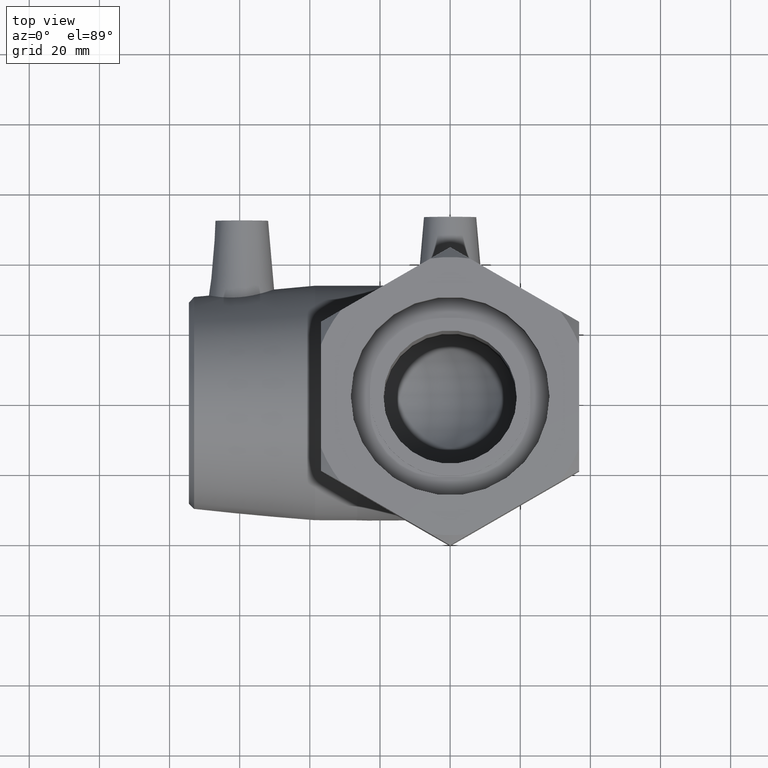
[diagram: clean part render]
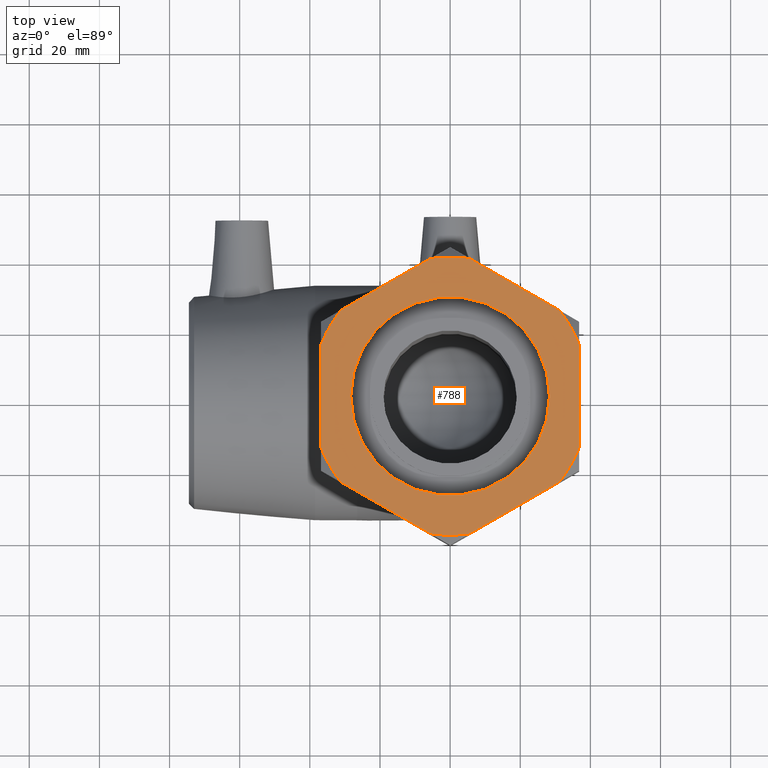
[diagram: same view with one face highlighted and labeled with its STEP entity id]
A machine part, top view. The second image highlights one B-rep face of the part: STEP entity #788.
In plain terms, the highlighted planar face has unit normal (0, 0, 1).
Its self-contained STEP definition (entity closure, byte-faithful):
#19=LINE('',#1207,#37);
#23=LINE('',#1231,#41);
#26=LINE('',#1253,#44);
#31=LINE('',#1290,#49);
#34=LINE('',#1312,#52);
#36=LINE('',#1331,#54);
#37=VECTOR('',#960,29.5753002784416);
#41=VECTOR('',#966,29.5753002784417);
#44=VECTOR('',#971,29.5753002784416);
#49=VECTOR('',#978,29.5753002784417);
#52=VECTOR('',#983,29.5753002784417);
#54=VECTOR('',#987,29.5753002784416);
#102=PLANE('',#869);
#121=FACE_BOUND('',#247,.T.);
#181=FACE_OUTER_BOUND('',#246,.T.);
#246=EDGE_LOOP('',(#653,#654,#655,#656,#657,#658,#659,#660,#661,#662,#663,
#664));
#247=EDGE_LOOP('',(#665));
#326=CIRCLE('',#844,39.6592);
#327=CIRCLE('',#846,39.6592);
#328=CIRCLE('',#848,39.6592);
#329=CIRCLE('',#850,39.6592);
#330=CIRCLE('',#852,39.6592);
#331=CIRCLE('',#854,39.6592);
#339=CIRCLE('',#870,28.328);
#378=VERTEX_POINT('',#1201);
#380=VERTEX_POINT('',#1206);
#386=VERTEX_POINT('',#1226);
#387=VERTEX_POINT('',#1230);
#392=VERTEX_POINT('',#1248);
#393=VERTEX_POINT('',#1252);
#399=VERTEX_POINT('',#1271);
#403=VERTEX_POINT('',#1286);
#404=VERTEX_POINT('',#1292);
#409=VERTEX_POINT('',#1308);
#410=VERTEX_POINT('',#1314);
#413=VERTEX_POINT('',#1327);
#415=VERTEX_POINT('',#1360);
#457=EDGE_CURVE('',#380,#378,#19,.T.);
#465=EDGE_CURVE('',#387,#386,#23,.T.);
#472=EDGE_CURVE('',#393,#392,#26,.T.);
#484=EDGE_CURVE('',#399,#403,#31,.T.);
#491=EDGE_CURVE('',#404,#409,#34,.T.);
#497=EDGE_CURVE('',#410,#413,#36,.T.);
#498=EDGE_CURVE('',#393,#403,#326,.T.);
#499=EDGE_CURVE('',#387,#392,#327,.T.);
#500=EDGE_CURVE('',#399,#413,#328,.T.);
#501=EDGE_CURVE('',#410,#409,#329,.T.);
#502=EDGE_CURVE('',#380,#386,#330,.T.);
#503=EDGE_CURVE('',#404,#378,#331,.T.);
#511=EDGE_CURVE('',#415,#415,#339,.T.);
#653=ORIENTED_EDGE('',*,*,#457,.T.);
#654=ORIENTED_EDGE('',*,*,#503,.F.);
#655=ORIENTED_EDGE('',*,*,#491,.T.);
#656=ORIENTED_EDGE('',*,*,#501,.F.);
#657=ORIENTED_EDGE('',*,*,#497,.T.);
#658=ORIENTED_EDGE('',*,*,#500,.F.);
#659=ORIENTED_EDGE('',*,*,#484,.T.);
#660=ORIENTED_EDGE('',*,*,#498,.F.);
#661=ORIENTED_EDGE('',*,*,#472,.T.);
#662=ORIENTED_EDGE('',*,*,#499,.F.);
#663=ORIENTED_EDGE('',*,*,#465,.T.);
#664=ORIENTED_EDGE('',*,*,#502,.F.);
#665=ORIENTED_EDGE('',*,*,#511,.T.);
#788=ADVANCED_FACE('',(#181,#121),#102,.T.);
#844=AXIS2_PLACEMENT_3D('',#1333,#990,#991);
#846=AXIS2_PLACEMENT_3D('',#1335,#994,#995);
#848=AXIS2_PLACEMENT_3D('',#1337,#998,#999);
#850=AXIS2_PLACEMENT_3D('',#1339,#1002,#1003);
#852=AXIS2_PLACEMENT_3D('',#1341,#1006,#1007);
#854=AXIS2_PLACEMENT_3D('',#1343,#1010,#1011);
#869=AXIS2_PLACEMENT_3D('',#1359,#1040,#1041);
#870=AXIS2_PLACEMENT_3D('',#1361,#1042,#1043);
#960=DIRECTION('',(0.866025403784438,0.500000000000001,-2.06492637464007E-16));
#966=DIRECTION('',(0.866025403784439,-0.499999999999999,-2.06492637464007E-16));
#971=DIRECTION('',(1.56766877241621E-15,-1.,-3.73790489368553E-31));
#978=DIRECTION('',(-0.866025403784438,-0.500000000000001,2.06492637464007E-16));
#983=DIRECTION('',(-1.14962376643855E-15,1.,2.74113025536939E-31));
#987=DIRECTION('',(-0.866025403784439,0.499999999999999,2.06492637464007E-16));
#990=DIRECTION('center_axis',(-2.3843715965104E-16,0.,-1.));
#991=DIRECTION('ref_axis',(1.,0.,-2.3843715965104E-16));
#994=DIRECTION('center_axis',(-2.3843715965104E-16,0.,-1.));
#995=DIRECTION('ref_axis',(1.,0.,-2.3843715965104E-16));
#998=DIRECTION('center_axis',(-2.3843715965104E-16,0.,-1.));
#999=DIRECTION('ref_axis',(1.,0.,-2.3843715965104E-16));
#1002=DIRECTION('center_axis',(-2.3843715965104E-16,0.,-1.));
#1003=DIRECTION('ref_axis',(1.,0.,-2.3843715965104E-16));
#1006=DIRECTION('center_axis',(-2.3843715965104E-16,0.,-1.));
#1007=DIRECTION('ref_axis',(1.,0.,-2.3843715965104E-16));
#1010=DIRECTION('center_axis',(-2.3843715965104E-16,0.,-1.));
#1011=DIRECTION('ref_axis',(1.,0.,-2.3843715965104E-16));
#1040=DIRECTION('center_axis',(2.3843715965104E-16,0.,1.));
#1041=DIRECTION('ref_axis',(1.,0.,0.));
#1042=DIRECTION('center_axis',(-2.3843715965104E-16,0.,-1.));
#1043=DIRECTION('ref_axis',(1.,0.,-2.3843715965104E-16));
#1201=CARTESIAN_POINT('',(31.206056411646,-24.4751749303896,115.5));
#1206=CARTESIAN_POINT('',(5.59309504596255,-39.2628250696104,115.5));
#1207=CARTESIAN_POINT('',(11.6648635932064,-35.7572878644021,115.5));
#1226=CARTESIAN_POINT('',(-5.59309504596237,-39.2628250696104,115.5));
#1230=CARTESIAN_POINT('',(-31.2060564116459,-24.4751749303896,115.5));
#1231=CARTESIAN_POINT('',(-25.134287864402,-27.9807121355979,115.5));
#1248=CARTESIAN_POINT('',(-36.7991514576083,-14.7876501392209,115.5));
#1252=CARTESIAN_POINT('',(-36.7991514576084,14.7876501392208,115.5));
#1253=CARTESIAN_POINT('',(-36.7991514576083,-10.623,115.5));
#1271=CARTESIAN_POINT('',(-5.59309504596246,39.2628250696104,115.5));
#1286=CARTESIAN_POINT('',(-31.2060564116459,24.4751749303895,115.5));
#1290=CARTESIAN_POINT('',(-43.5338635932063,17.3577121355979,115.5));
#1292=CARTESIAN_POINT('',(36.7991514576084,-14.7876501392208,115.5));
#1308=CARTESIAN_POINT('',(36.7991514576084,14.7876501392209,115.5));
#1312=CARTESIAN_POINT('',(36.7991514576084,10.6230000000001,115.5));
#1314=CARTESIAN_POINT('',(31.2060564116459,24.4751749303896,115.5));
#1327=CARTESIAN_POINT('',(5.59309504596245,39.2628250696104,115.5));
#1331=CARTESIAN_POINT('',(-6.73471213559794,46.3802878644021,115.5));
#1333=CARTESIAN_POINT('Origin',(2.75394919396952E-14,0.,115.5));
#1335=CARTESIAN_POINT('Origin',(2.75394919396952E-14,0.,115.5));
#1337=CARTESIAN_POINT('Origin',(2.75394919396952E-14,0.,115.5));
#1339=CARTESIAN_POINT('Origin',(2.75394919396952E-14,0.,115.5));
#1341=CARTESIAN_POINT('Origin',(2.75394919396952E-14,0.,115.5));
#1343=CARTESIAN_POINT('Origin',(2.75394919396952E-14,0.,115.5));
#1359=CARTESIAN_POINT('Origin',(-42.492,0.,115.5));
#1360=CARTESIAN_POINT('',(-28.328,0.,115.5));
#1361=CARTESIAN_POINT('Origin',(2.75394919396952E-14,0.,115.5));